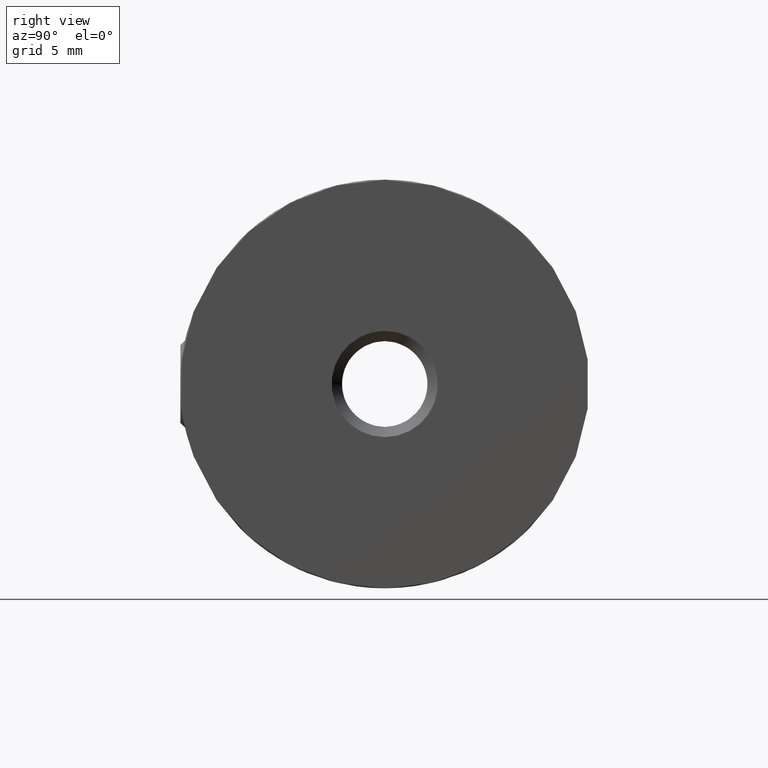
[diagram: clean part render]
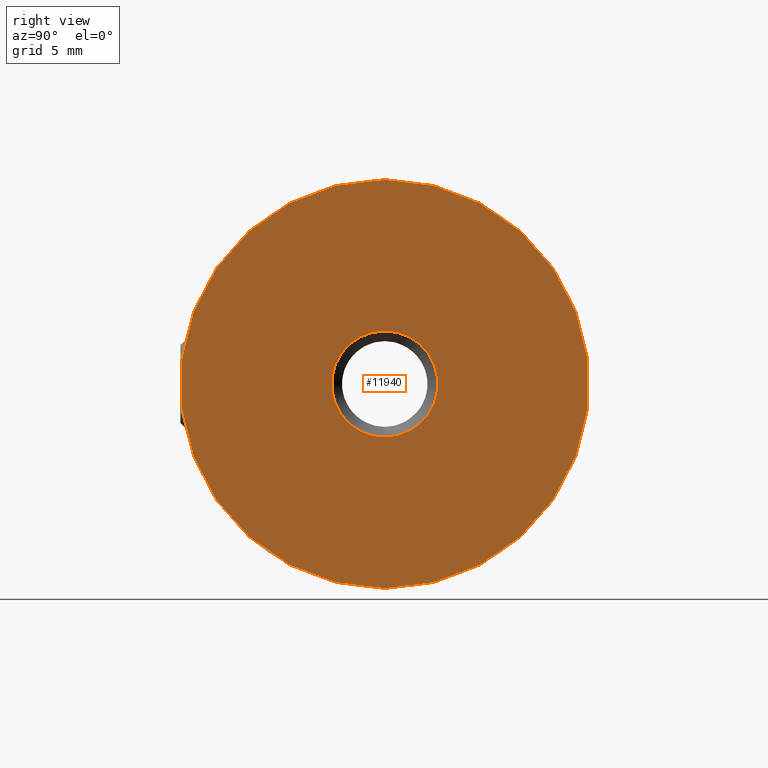
[diagram: same view with one face highlighted and labeled with its STEP entity id]
A machine part, right view. The second image highlights one B-rep face of the part: STEP entity #11940.
In plain terms, the highlighted planar face has unit normal (1, 0, 0).
Its self-contained STEP definition (entity closure, byte-faithful):
#622 = ORIENTED_EDGE ( 'NONE', *, *, #13727, .T. ) ;
#1212 = CIRCLE ( 'NONE', #5318, 10.00000000000000000 ) ;
#1417 = FACE_BOUND ( 'NONE', #4072, .T. ) ;
#1667 = CARTESIAN_POINT ( 'NONE',  ( 11.00000000000000000, 0.000000000000000000, 0.000000000000000000 ) ) ;
#2225 = DIRECTION ( 'NONE',  ( 1.000000000000000000, 0.000000000000000000, 0.000000000000000000 ) ) ;
#2332 = FACE_OUTER_BOUND ( 'NONE', #9229, .T. ) ;
#2537 = DIRECTION ( 'NONE',  ( 0.000000000000000000, 0.000000000000000000, -1.000000000000000000 ) ) ;
#3083 = DIRECTION ( 'NONE',  ( -1.000000000000000000, -0.000000000000000000, -0.000000000000000000 ) ) ;
#3132 = VERTEX_POINT ( 'NONE', #5866 ) ;
#3194 = VERTEX_POINT ( 'NONE', #5763 ) ;
#3653 = CARTESIAN_POINT ( 'NONE',  ( 11.00000000000000000, 0.000000000000000000, 0.000000000000000000 ) ) ;
#4072 = EDGE_LOOP ( 'NONE', ( #10398, #8746 ) ) ;
#4196 = CARTESIAN_POINT ( 'NONE',  ( 11.00000000000000000, 0.000000000000000000, -2.599999999999987654 ) ) ;
#4491 = EDGE_CURVE ( 'NONE', #9125, #11870, #6135, .T. ) ;
#4853 = PLANE ( 'NONE',  #11529 ) ;
#5318 = AXIS2_PLACEMENT_3D ( 'NONE', #8046, #2225, #5578 ) ;
#5578 = DIRECTION ( 'NONE',  ( 0.000000000000000000, 0.000000000000000000, -1.000000000000000000 ) ) ;
#5763 = CARTESIAN_POINT ( 'NONE',  ( 11.00000000000000000, 0.000000000000000000, 10.00000000000000000 ) ) ;
#5866 = CARTESIAN_POINT ( 'NONE',  ( 11.00000000000000000, 1.224646799147353256E-15, -10.00000000000000000 ) ) ;
#6135 = CIRCLE ( 'NONE', #9046, 2.599999999999987654 ) ;
#7507 = CIRCLE ( 'NONE', #9347, 10.00000000000000000 ) ;
#7548 = DIRECTION ( 'NONE',  ( 0.000000000000000000, 0.000000000000000000, -1.000000000000000000 ) ) ;
#8046 = CARTESIAN_POINT ( 'NONE',  ( 11.00000000000000000, 0.000000000000000000, 0.000000000000000000 ) ) ;
#8340 = DIRECTION ( 'NONE',  ( 1.000000000000000000, 0.000000000000000000, 0.000000000000000000 ) ) ;
#8429 = ORIENTED_EDGE ( 'NONE', *, *, #10920, .T. ) ;
#8461 = EDGE_CURVE ( 'NONE', #11870, #9125, #8837, .T. ) ;
#8514 = DIRECTION ( 'NONE',  ( 1.000000000000000000, 0.000000000000000000, 0.000000000000000000 ) ) ;
#8746 = ORIENTED_EDGE ( 'NONE', *, *, #8461, .T. ) ;
#8753 = DIRECTION ( 'NONE',  ( 0.000000000000000000, 0.000000000000000000, -1.000000000000000000 ) ) ;
#8837 = CIRCLE ( 'NONE', #15057, 2.599999999999987654 ) ;
#9046 = AXIS2_PLACEMENT_3D ( 'NONE', #12674, #3083, #10294 ) ;
#9125 = VERTEX_POINT ( 'NONE', #4196 ) ;
#9229 = EDGE_LOOP ( 'NONE', ( #8429, #622 ) ) ;
#9347 = AXIS2_PLACEMENT_3D ( 'NONE', #14379, #8514, #7548 ) ;
#10294 = DIRECTION ( 'NONE',  ( 0.000000000000000000, 0.000000000000000000, -1.000000000000000000 ) ) ;
#10398 = ORIENTED_EDGE ( 'NONE', *, *, #4491, .T. ) ;
#10920 = EDGE_CURVE ( 'NONE', #3194, #3132, #7507, .T. ) ;
#11529 = AXIS2_PLACEMENT_3D ( 'NONE', #3653, #8340, #2537 ) ;
#11870 = VERTEX_POINT ( 'NONE', #14160 ) ;
#11940 = ADVANCED_FACE ( 'NONE', ( #1417, #2332 ), #4853, .T. ) ;
#12414 = DIRECTION ( 'NONE',  ( -1.000000000000000000, -0.000000000000000000, -0.000000000000000000 ) ) ;
#12674 = CARTESIAN_POINT ( 'NONE',  ( 11.00000000000000000, 0.000000000000000000, 0.000000000000000000 ) ) ;
#13727 = EDGE_CURVE ( 'NONE', #3132, #3194, #1212, .T. ) ;
#14160 = CARTESIAN_POINT ( 'NONE',  ( 11.00000000000000000, 3.184081677783103400E-16, 2.599999999999987654 ) ) ;
#14379 = CARTESIAN_POINT ( 'NONE',  ( 11.00000000000000000, 0.000000000000000000, 0.000000000000000000 ) ) ;
#15057 = AXIS2_PLACEMENT_3D ( 'NONE', #1667, #12414, #8753 ) ;